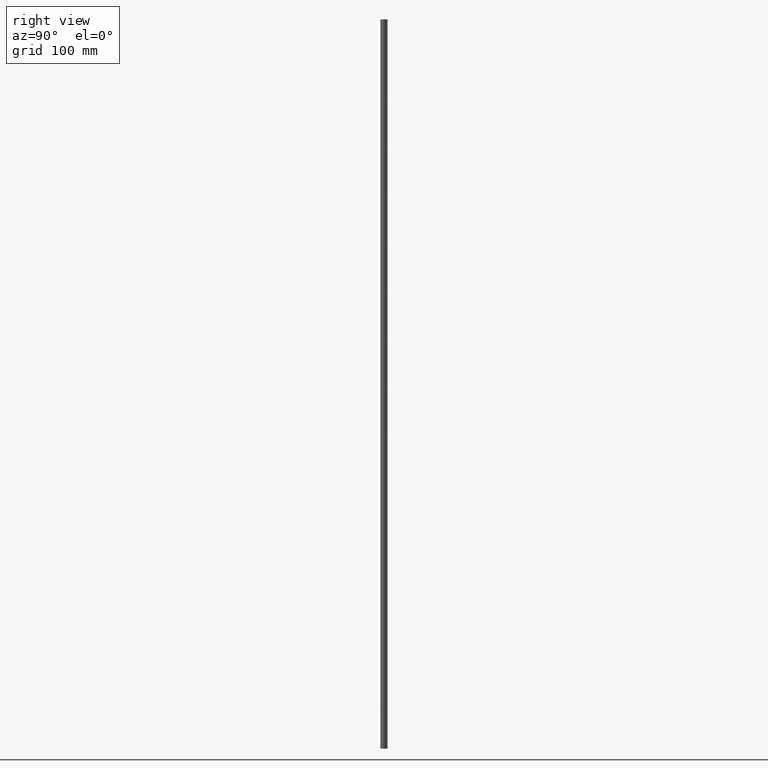
[diagram: clean part render]
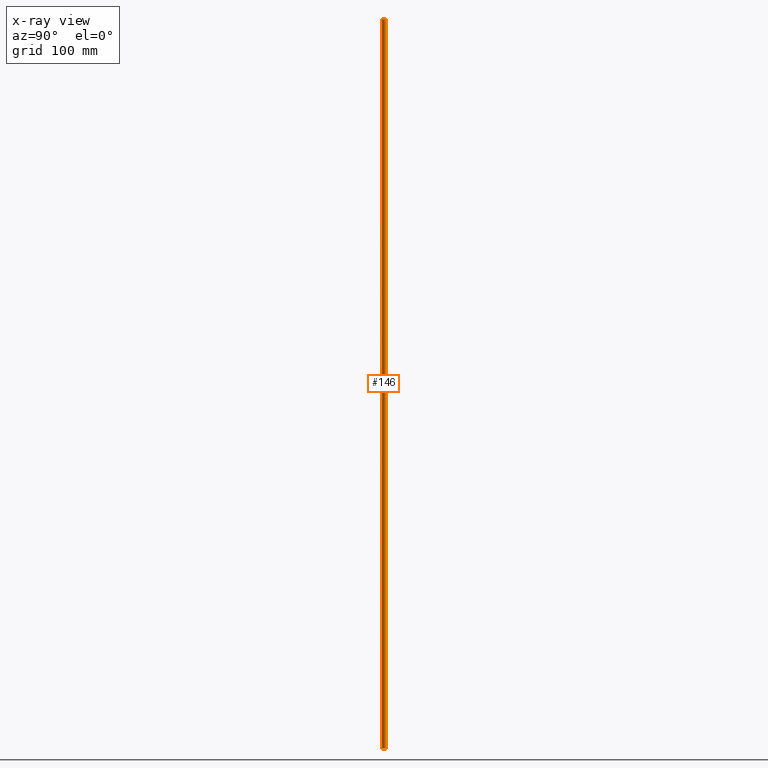
[diagram: x-ray — body ghosted, one internal face saturated and labeled with its STEP entity id]
A machine part, right view, then the same camera in x-ray: the body is ghosted and one INTERNAL B-rep face — a face not visible from any outside direction — is saturated and labeled: STEP entity #146.
In plain terms, the highlighted face is a freeform B-spline surface patch.
Its self-contained STEP definition (entity closure, byte-faithful):
#44=CARTESIAN_POINT('',(0.177051351985138,-1.489514289545500,615.000000000000230));
#45=CARTESIAN_POINT('',(0.134422092956966,-1.494581423172908,615.000000000000230));
#46=CARTESIAN_POINT('',(0.091572809302285,-1.497202197632800,615.000000000000110));
#47=CARTESIAN_POINT('',(-1.405629388330515,-1.588775006935085,615.0));
#48=CARTESIAN_POINT('',(-1.497202197632800,-0.091572809302285,615.000000000000110));
#49=CARTESIAN_POINT('',(-1.588775006935085,1.405629388330515,615.0));
#50=CARTESIAN_POINT('',(-0.091572809302285,1.497202197632800,615.000000000000110));
#51=CARTESIAN_POINT('',(0.177051351985138,-1.489514289545500,-15.375000000000005));
#52=CARTESIAN_POINT('',(0.134422092956966,-1.494581423172908,-15.375000000000004));
#53=CARTESIAN_POINT('',(0.091572809302285,-1.497202197632800,-15.375000000000000));
#54=CARTESIAN_POINT('',(-1.405629388330515,-1.588775006935085,-15.375000000000002));
#55=CARTESIAN_POINT('',(-1.497202197632800,-0.091572809302285,-15.375000000000000));
#56=CARTESIAN_POINT('',(-1.588775006935085,1.405629388330515,-15.375000000000002));
#57=CARTESIAN_POINT('',(-0.091572809302285,1.497202197632800,-15.375000000000000));
#65=(BOUNDED_SURFACE()B_SPLINE_SURFACE(2,1,((#44,#51),(#45,#52),(#46,#53),(#47,#54),(#48,#55),(#49,#56),(#50,#57)),.UNSPECIFIED.,.F.,.F.,.U.)B_SPLINE_SURFACE_WITH_KNOTS((3,2,2,3),(2,2),(3.078760800517997,3.141592653589793,4.712388980384690,6.283185307179586),(0.0,630.375000000000230),.UNSPECIFIED.)GEOMETRIC_REPRESENTATION_ITEM()RATIONAL_B_SPLINE_SURFACE(((0.977505800795127,0.977505800795127),(0.988284271247462,0.988284271247462),(1.0,1.0),(0.707106781186548,0.707106781186548),(1.0,1.0),(0.707106781186548,0.707106781186548),(1.0,1.0)))REPRESENTATION_ITEM('')SURFACE());
#66=CARTESIAN_POINT('',(0.177051375228613,-1.489514286782660,-2.634989E-014));
#67=VERTEX_POINT('',#66);
#68=CARTESIAN_POINT('',(-1.500000000000000,0.0,0.0));
#69=VERTEX_POINT('',#68);
#70=CARTESIAN_POINT('',(0.177051375228613,-1.489514286782660,-2.634989E-014));
#71=CARTESIAN_POINT('',(0.088836202967068,-1.500000000000000,0.0));
#72=CARTESIAN_POINT('',(0.0,-1.500000000000000,0.0));
#73=CARTESIAN_POINT('',(-1.500000000000000,-1.500000000000000,0.0));
#74=CARTESIAN_POINT('',(-1.500000000000000,0.0,0.0));
#82=(BOUNDED_CURVE()B_SPLINE_CURVE(2,(#70,#71,#72,#73,#74),.UNSPECIFIED.,.F.,.U.)B_SPLINE_CURVE_WITH_KNOTS((3,2,3),(0.229562468241142,0.250000000000000,0.500000000000000),.UNSPECIFIED.)CURVE()GEOMETRIC_REPRESENTATION_ITEM()RATIONAL_B_SPLINE_CURVE((0.956026743849647,0.976055942154184,1.0,0.707106781186548,1.0))REPRESENTATION_ITEM(''));
#83=EDGE_CURVE('',#67,#69,#82,.T.);
#84=ORIENTED_EDGE('',*,*,#83,.F.);
#85=CARTESIAN_POINT('',(0.177051375228687,-1.489514286782651,600.0));
#86=VERTEX_POINT('',#85);
#87=CARTESIAN_POINT('',(0.177051375228687,-1.489514286782651,600.0));
#88=CARTESIAN_POINT('',(0.177051375228613,-1.489514286782660,-2.634989E-014));
#89=QUASI_UNIFORM_CURVE('',1,(#87,#88),.UNSPECIFIED.,.F.,.U.);
#90=EDGE_CURVE('',#86,#67,#89,.T.);
#91=ORIENTED_EDGE('',*,*,#90,.F.);
#92=CARTESIAN_POINT('',(-1.500000000000000,0.0,600.0));
#93=VERTEX_POINT('',#92);
#94=CARTESIAN_POINT('',(0.177051375228687,-1.489514286782651,600.0));
#95=CARTESIAN_POINT('',(0.088836202967143,-1.500000000000000,599.999999999999890));
#96=CARTESIAN_POINT('',(0.0,-1.500000000000000,600.0));
#97=CARTESIAN_POINT('',(-1.500000000000000,-1.500000000000000,599.999999999999890));
#98=CARTESIAN_POINT('',(-1.500000000000000,0.0,600.0));
#106=(BOUNDED_CURVE()B_SPLINE_CURVE(2,(#94,#95,#96,#97,#98),.UNSPECIFIED.,.F.,.U.)B_SPLINE_CURVE_WITH_KNOTS((3,2,3),(0.229562468241126,0.250000000000000,0.500000000000000),.UNSPECIFIED.)CURVE()GEOMETRIC_REPRESENTATION_ITEM()RATIONAL_B_SPLINE_CURVE((0.956026743849614,0.976055942154164,1.0,0.707106781186548,1.0))REPRESENTATION_ITEM(''));
#107=EDGE_CURVE('',#86,#93,#106,.T.);
#108=ORIENTED_EDGE('',*,*,#107,.T.);
#109=CARTESIAN_POINT('',(-0.091572819049189,1.497202197036654,600.0));
#110=VERTEX_POINT('',#109);
#111=CARTESIAN_POINT('',(-1.500000000000000,0.0,600.0));
#112=CARTESIAN_POINT('',(-1.500000000000000,1.411059081952000,600.0));
#113=CARTESIAN_POINT('',(-0.091572819049189,1.497202197036654,600.0));
#121=(BOUNDED_CURVE()B_SPLINE_CURVE(2,(#111,#112,#113),.UNSPECIFIED.,.F.,.U.)B_SPLINE_CURVE_WITH_KNOTS((3,3),(0.500000000000000,0.739332959995382),.UNSPECIFIED.)CURVE()GEOMETRIC_REPRESENTATION_ITEM()RATIONAL_B_SPLINE_CURVE((1.0,0.719603995915205,0.976072036858340))REPRESENTATION_ITEM(''));
#122=EDGE_CURVE('',#93,#110,#121,.T.);
#123=ORIENTED_EDGE('',*,*,#122,.T.);
#124=CARTESIAN_POINT('',(-0.091572819049168,1.497202197036655,-2.664535E-014));
#125=VERTEX_POINT('',#124);
#126=CARTESIAN_POINT('',(-0.091572819049189,1.497202197036654,600.0));
#127=CARTESIAN_POINT('',(-0.091572819049168,1.497202197036655,-2.664535E-014));
#128=QUASI_UNIFORM_CURVE('',1,(#126,#127),.UNSPECIFIED.,.F.,.U.);
#129=EDGE_CURVE('',#110,#125,#128,.T.);
#130=ORIENTED_EDGE('',*,*,#129,.T.);
#131=CARTESIAN_POINT('',(-1.500000000000000,0.0,0.0));
#132=CARTESIAN_POINT('',(-1.500000000000000,1.411059081952036,0.0));
#133=CARTESIAN_POINT('',(-0.091572819049168,1.497202197036656,-2.664535E-014));
#141=(BOUNDED_CURVE()B_SPLINE_CURVE(2,(#131,#132,#133),.UNSPECIFIED.,.F.,.U.)B_SPLINE_CURVE_WITH_KNOTS((3,3),(0.500000000000000,0.739332959995386),.UNSPECIFIED.)CURVE()GEOMETRIC_REPRESENTATION_ITEM()RATIONAL_B_SPLINE_CURVE((1.0,0.719603995915200,0.976072036858349))REPRESENTATION_ITEM(''));
#142=EDGE_CURVE('',#69,#125,#141,.T.);
#143=ORIENTED_EDGE('',*,*,#142,.F.);
#144=EDGE_LOOP('',(#84,#91,#108,#123,#130,#143));
#145=FACE_OUTER_BOUND('',#144,.T.);
#146=ADVANCED_FACE('',(#145),#65,.T.);